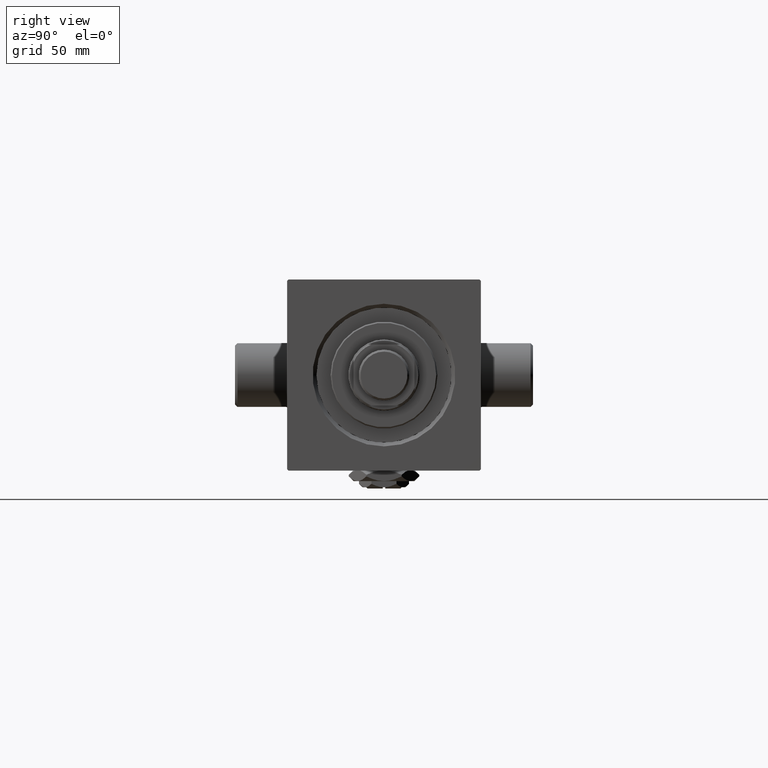
[diagram: clean part render]
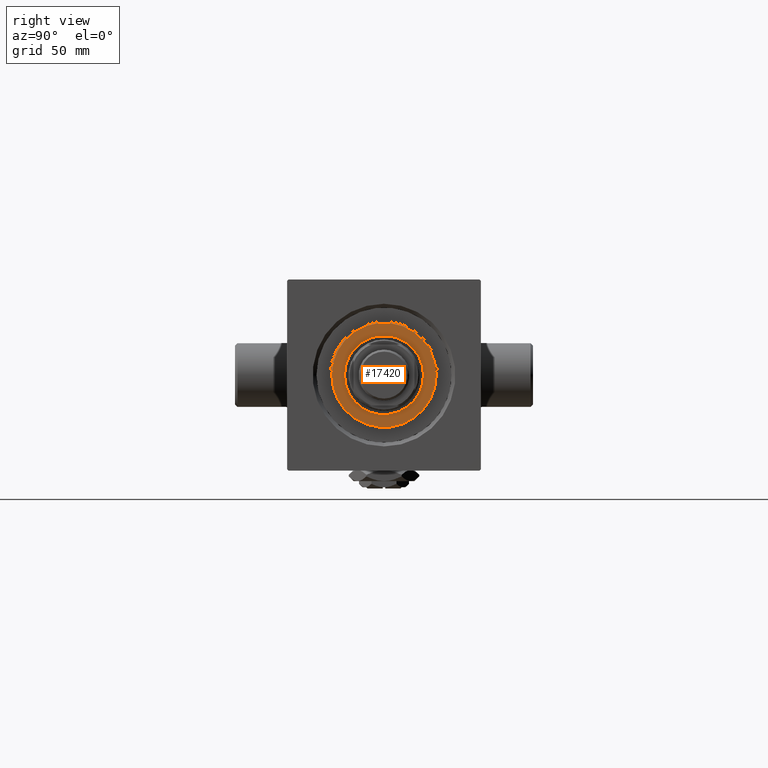
[diagram: same view with one face highlighted and labeled with its STEP entity id]
A machine part, right view. The second image highlights one B-rep face of the part: STEP entity #17420.
In plain terms, the highlighted planar face has unit normal (1, 0, 0).
Its self-contained STEP definition (entity closure, byte-faithful):
#155 = CARTESIAN_POINT ( 'NONE',  ( 0.000000000000000000, 0.000000000000000000, 35.69999999999999574 ) ) ;
#765 = CARTESIAN_POINT ( 'NONE',  ( 0.000000000000000000, 0.000000000000000000, 35.69999999999999574 ) ) ;
#1714 = FACE_BOUND ( 'NONE', #45046, .T. ) ;
#7576 = DIRECTION ( 'NONE',  ( 0.000000000000000000, 0.000000000000000000, 1.000000000000000000 ) ) ;
#8634 = AXIS2_PLACEMENT_3D ( 'NONE', #765, #15143, #22790 ) ;
#9382 = DIRECTION ( 'NONE',  ( 0.000000000000000000, 0.000000000000000000, 1.000000000000000000 ) ) ;
#9675 = CARTESIAN_POINT ( 'NONE',  ( 20.50000000000002487, 2.541142108230759057E-15, 35.69999999999999574 ) ) ;
#10908 = CIRCLE ( 'NONE', #25158, 20.50000000000002487 ) ;
#11174 = CARTESIAN_POINT ( 'NONE',  ( -20.50000000000002487, 0.000000000000000000, 35.69999999999999574 ) ) ;
#12038 = CARTESIAN_POINT ( 'NONE',  ( 15.50000000000000000, 0.000000000000000000, 35.69999999999999574 ) ) ;
#12277 = EDGE_CURVE ( 'NONE', #24888, #44739, #40101, .T. ) ;
#12870 = DIRECTION ( 'NONE',  ( 1.000000000000000000, 0.000000000000000000, -0.000000000000000000 ) ) ;
#14218 = EDGE_CURVE ( 'NONE', #44739, #24888, #10908, .T. ) ;
#15143 = DIRECTION ( 'NONE',  ( 0.000000000000000000, 0.000000000000000000, 1.000000000000000000 ) ) ;
#16098 = FACE_OUTER_BOUND ( 'NONE', #41443, .T. ) ;
#17420 = ADVANCED_FACE ( 'NONE', ( #1714, #16098 ), #31913, .T. ) ;
#20525 = AXIS2_PLACEMENT_3D ( 'NONE', #24492, #9382, #12870 ) ;
#20603 = VERTEX_POINT ( 'NONE', #12038 ) ;
#21751 = DIRECTION ( 'NONE',  ( 0.000000000000000000, 0.000000000000000000, 1.000000000000000000 ) ) ;
#22790 = DIRECTION ( 'NONE',  ( 1.000000000000000000, 0.000000000000000000, 0.000000000000000000 ) ) ;
#24004 = CARTESIAN_POINT ( 'NONE',  ( 0.000000000000000000, 0.000000000000000000, 35.69999999999999574 ) ) ;
#24492 = CARTESIAN_POINT ( 'NONE',  ( 0.000000000000000000, 0.000000000000000000, 35.69999999999999574 ) ) ;
#24880 = ORIENTED_EDGE ( 'NONE', *, *, #12277, .T. ) ;
#24888 = VERTEX_POINT ( 'NONE', #11174 ) ;
#25158 = AXIS2_PLACEMENT_3D ( 'NONE', #155, #7576, #42002 ) ;
#26196 = EDGE_CURVE ( 'NONE', #20603, #42667, #46800, .T. ) ;
#28247 = ORIENTED_EDGE ( 'NONE', *, *, #38294, .F. ) ;
#31913 = PLANE ( 'NONE',  #20525 ) ;
#31916 = DIRECTION ( 'NONE',  ( 0.000000000000000000, 0.000000000000000000, 1.000000000000000000 ) ) ;
#32407 = CARTESIAN_POINT ( 'NONE',  ( 0.000000000000000000, 0.000000000000000000, 35.69999999999999574 ) ) ;
#32884 = DIRECTION ( 'NONE',  ( 1.000000000000000000, 0.000000000000000000, 0.000000000000000000 ) ) ;
#33335 = AXIS2_PLACEMENT_3D ( 'NONE', #24004, #31916, #39103 ) ;
#38294 = EDGE_CURVE ( 'NONE', #42667, #20603, #48194, .T. ) ;
#39103 = DIRECTION ( 'NONE',  ( 1.000000000000000000, 0.000000000000000000, 0.000000000000000000 ) ) ;
#40101 = CIRCLE ( 'NONE', #46445, 20.50000000000002487 ) ;
#41443 = EDGE_LOOP ( 'NONE', ( #24880, #47227 ) ) ;
#42002 = DIRECTION ( 'NONE',  ( 1.000000000000000000, 0.000000000000000000, 0.000000000000000000 ) ) ;
#42667 = VERTEX_POINT ( 'NONE', #42835 ) ;
#42835 = CARTESIAN_POINT ( 'NONE',  ( -15.50000000000000000, 1.898202538678397557E-15, 35.69999999999999574 ) ) ;
#44739 = VERTEX_POINT ( 'NONE', #9675 ) ;
#45046 = EDGE_LOOP ( 'NONE', ( #45350, #28247 ) ) ;
#45350 = ORIENTED_EDGE ( 'NONE', *, *, #26196, .F. ) ;
#46445 = AXIS2_PLACEMENT_3D ( 'NONE', #32407, #21751, #32884 ) ;
#46800 = CIRCLE ( 'NONE', #33335, 15.50000000000000000 ) ;
#47227 = ORIENTED_EDGE ( 'NONE', *, *, #14218, .T. ) ;
#48194 = CIRCLE ( 'NONE', #8634, 15.50000000000000000 ) ;